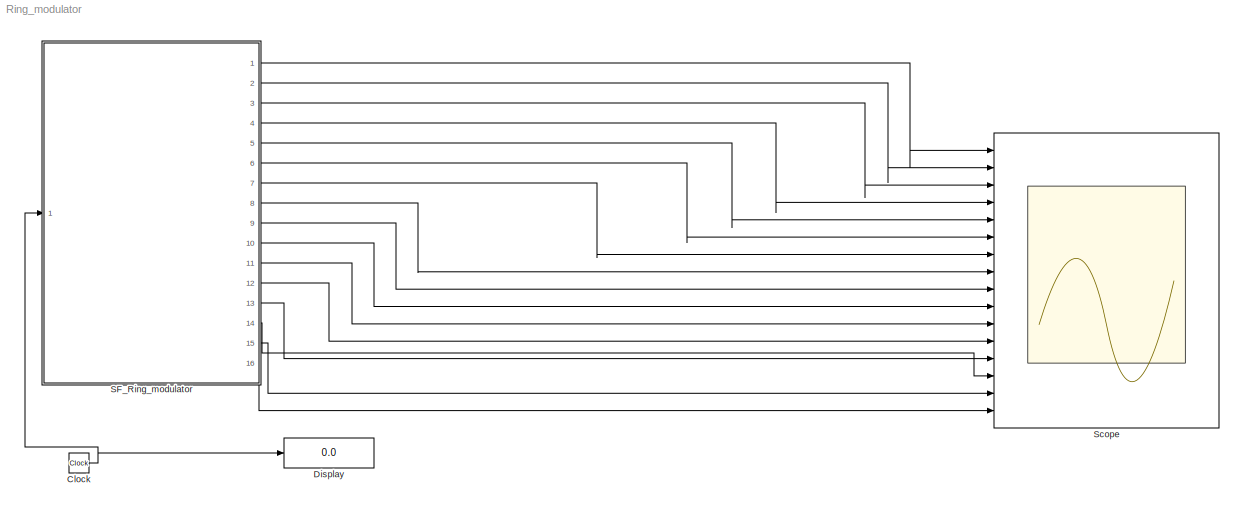
MODEL Ring_modulator
KIND model
BLOCK [Clock] Clock
  SID = 3
BLOCK [Display] Display
  Decimation = 1
  Ports = [1]
  SID = 4
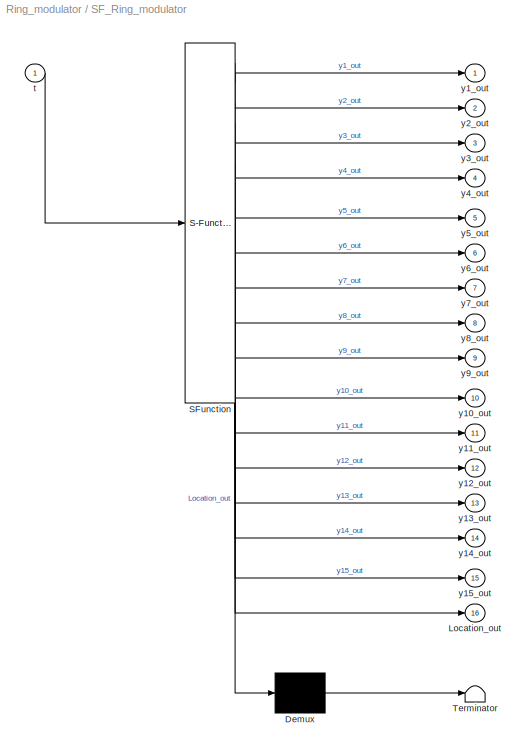
BLOCK [SubSystem] SF_Ring_modulator
  ErrorFcn = Stateflow.Translate.translate
  PermitHierarchicalResolution = ExplicitOnly
  Ports = [1, 16]
  RequestExecContextInheritance = off
  SFBlockType = Chart
  SID = 1
  TreatAsAtomicUnit = on
BLOCK [Demux] SF_Ring_modulator/ Demux 
  Outputs = 1
  Ports = [1, 1]
  SID = 1::86
BLOCK [S-Function] SF_Ring_modulator/ SFunction 
  EnableBusSupport = off
  FunctionName = sf_sfun
  PortCounts = [1 17]
  Ports = [1, 17]
  SFcnIsStateOwnerBlock = off
  SFunctionDeploymentMode = off
  SID = 1::85
  Tag = Stateflow S-Function 3
BLOCK [Terminator] SF_Ring_modulator/ Terminator 
  SID = 1::87
BLOCK [Outport] SF_Ring_modulator/Location_out
  IconDisplay = Port number
  Port = 16
  SID = 1::80
BLOCK [Inport] SF_Ring_modulator/t
  IconDisplay = Port number
  SID = 1::84
BLOCK [Outport] SF_Ring_modulator/y10_out
  IconDisplay = Port number
  Port = 10
  SID = 1::74
BLOCK [Outport] SF_Ring_modulator/y11_out
  IconDisplay = Port number
  Port = 11
  SID = 1::75
BLOCK [Outport] SF_Ring_modulator/y12_out
  IconDisplay = Port number
  Port = 12
  SID = 1::76
BLOCK [Outport] SF_Ring_modulator/y13_out
  IconDisplay = Port number
  Port = 13
  SID = 1::77
BLOCK [Outport] SF_Ring_modulator/y14_out
  IconDisplay = Port number
  Port = 14
  SID = 1::78
BLOCK [Outport] SF_Ring_modulator/y15_out
  IconDisplay = Port number
  Port = 15
  SID = 1::79
BLOCK [Outport] SF_Ring_modulator/y1_out
  IconDisplay = Port number
  SID = 1::65
BLOCK [Outport] SF_Ring_modulator/y2_out
  IconDisplay = Port number
  Port = 2
  SID = 1::66
BLOCK [Outport] SF_Ring_modulator/y3_out
  IconDisplay = Port number
  Port = 3
  SID = 1::67
BLOCK [Outport] SF_Ring_modulator/y4_out
  IconDisplay = Port number
  Port = 4
  SID = 1::68
BLOCK [Outport] SF_Ring_modulator/y5_out
  IconDisplay = Port number
  Port = 5
  SID = 1::69
BLOCK [Outport] SF_Ring_modulator/y6_out
  IconDisplay = Port number
  Port = 6
  SID = 1::70
BLOCK [Outport] SF_Ring_modulator/y7_out
  IconDisplay = Port number
  Port = 7
  SID = 1::71
BLOCK [Outport] SF_Ring_modulator/y8_out
  IconDisplay = Port number
  Port = 8
  SID = 1::72
BLOCK [Outport] SF_Ring_modulator/y9_out
  IconDisplay = Port number
  Port = 9
  SID = 1::73
BLOCK [Scope] Scope
  Floating = off
  NumInputPorts = 16
  Ports = [16]
  SID = 2
  ScopeSpecificationString = C++SS(StrPVP('Location','[188, 365, 512, 604]'),StrPVP('Open','off'),MxPVP('AxesTitles',54,'struct(''axes1'',''%<SignalLabel>'',''axes2'',''%<SignalLabel>'',''axes3'',''%<SignalLabel>'',''axes4'',''%<SignalLabel>'',''axes5'',''%<SignalLabel>'',''axes6'',''%<SignalLabel>'',''axes7'',''%<SignalLabel>'',''axes8'',''%<SignalLabel>'',''axes9'',''%<SignalLabel>'',''axes10'',''%<SignalLabel>'',''axes11''...<+360ch>
NET Clock:1 -> Display:1, SF_Ring_modulator:1
LINE SF_Ring_modulator/ Demux :1 -> SF_Ring_modulator/ Terminator :1
LINE SF_Ring_modulator/ SFunction :1 -> SF_Ring_modulator/ Demux :1
LINE SF_Ring_modulator/ SFunction :10 -> SF_Ring_modulator/y9_out:1
LINE SF_Ring_modulator/ SFunction :11 -> SF_Ring_modulator/y10_out:1
LINE SF_Ring_modulator/ SFunction :12 -> SF_Ring_modulator/y11_out:1
LINE SF_Ring_modulator/ SFunction :13 -> SF_Ring_modulator/y12_out:1
LINE SF_Ring_modulator/ SFunction :14 -> SF_Ring_modulator/y13_out:1
LINE SF_Ring_modulator/ SFunction :15 -> SF_Ring_modulator/y14_out:1
LINE SF_Ring_modulator/ SFunction :16 -> SF_Ring_modulator/y15_out:1
LINE SF_Ring_modulator/ SFunction :17 -> SF_Ring_modulator/Location_out:1
LINE SF_Ring_modulator/ SFunction :2 -> SF_Ring_modulator/y1_out:1
LINE SF_Ring_modulator/ SFunction :3 -> SF_Ring_modulator/y2_out:1
LINE SF_Ring_modulator/ SFunction :4 -> SF_Ring_modulator/y3_out:1
LINE SF_Ring_modulator/ SFunction :5 -> SF_Ring_modulator/y4_out:1
LINE SF_Ring_modulator/ SFunction :6 -> SF_Ring_modulator/y5_out:1
LINE SF_Ring_modulator/ SFunction :7 -> SF_Ring_modulator/y6_out:1
LINE SF_Ring_modulator/ SFunction :8 -> SF_Ring_modulator/y7_out:1
LINE SF_Ring_modulator/ SFunction :9 -> SF_Ring_modulator/y8_out:1
LINE SF_Ring_modulator/t:1 -> SF_Ring_modulator/ SFunction :1
LINE SF_Ring_modulator:1 -> Scope:1
LINE SF_Ring_modulator:10 -> Scope:10
LINE SF_Ring_modulator:11 -> Scope:11
LINE SF_Ring_modulator:12 -> Scope:12
LINE SF_Ring_modulator:13 -> Scope:13
LINE SF_Ring_modulator:14 -> Scope:14
LINE SF_Ring_modulator:15 -> Scope:15
LINE SF_Ring_modulator:16 -> Scope:16
LINE SF_Ring_modulator:2 -> Scope:2
LINE SF_Ring_modulator:3 -> Scope:3
LINE SF_Ring_modulator:4 -> Scope:4
LINE SF_Ring_modulator:5 -> Scope:5
LINE SF_Ring_modulator:6 -> Scope:6
LINE SF_Ring_modulator:7 -> Scope:7
LINE SF_Ring_modulator:8 -> Scope:8
LINE SF_Ring_modulator:9 -> Scope:9
note: NET lines group one-source signal fan-out (src -> all destinations, sorted); 1:1 wires keep LINE
CHART SF_Ring_modulator states=1 transitions=1
  STATE_LABEL 'Ring_modulator\\ndu:\\ny1_dot=(C^-1)*(y8-0.5*y10+0.5*y11+y14-(R^-1)*y1);\\ny2_dot=(C^-1)*(y9-0.5*y12+0.5*y13+y15-(R^-1)*y2);\\ny3_dot=(Cs^-1)*(y10 - gamma*(exp(theta*(y3-y5-y7-2*sin(20000*pi*t)))-1) + gamma*(exp(theta*(-y3-y6+y7+ 2*sin(20000*pi*t)))-1));\\ny4_dot=(Cs^-1)*(-y11+ gamma*(exp(theta*(-y4+y6-y7-2*sin(20000*pi*t)))-1) + gamma*(exp(theta*(y4+y5+y7+2*sin(20000*pi*t)))-1));\\ny5_dot=(Cs^-1)*(y12+...<+973ch>'
